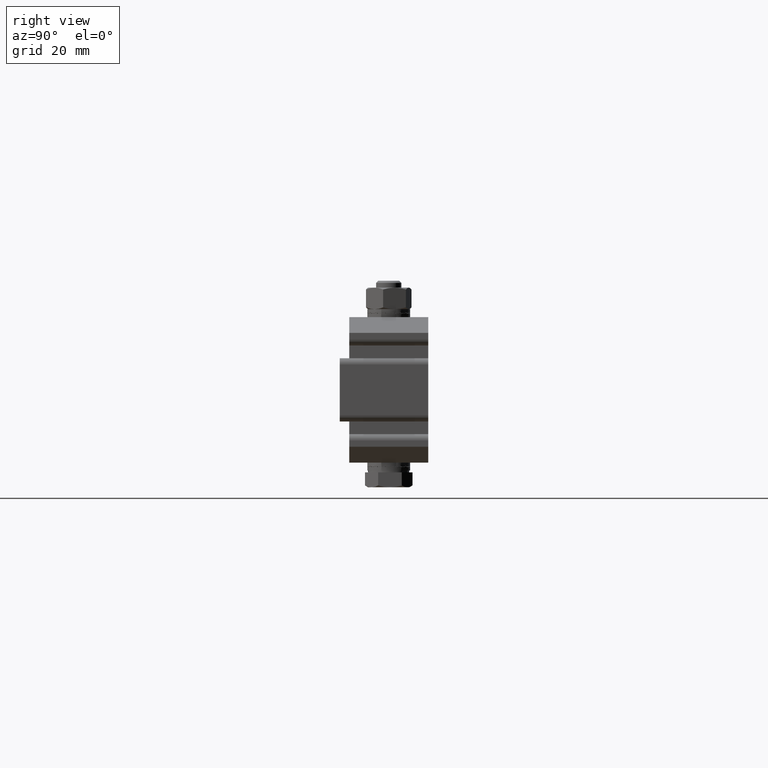
[diagram: clean part render]
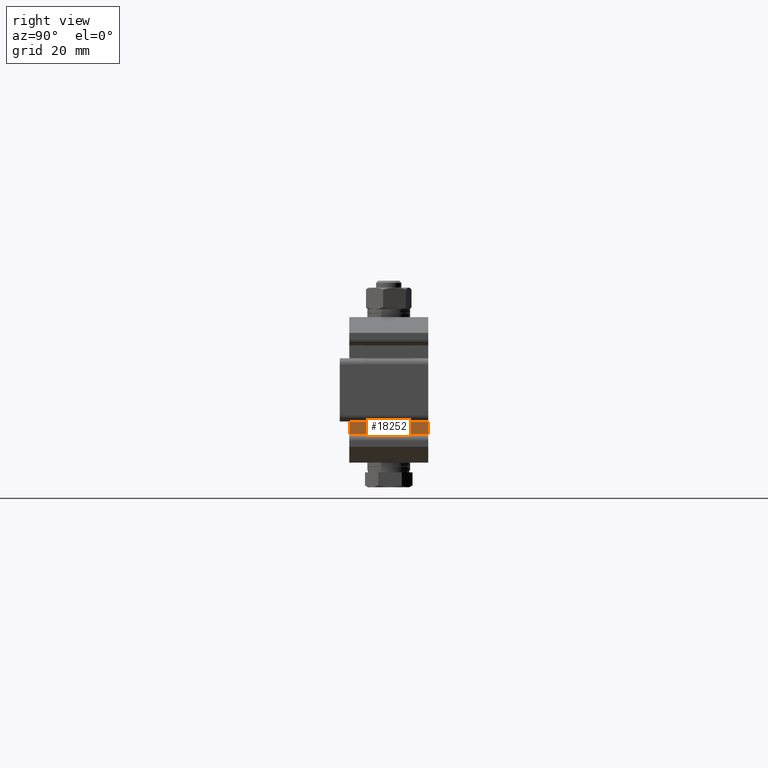
[diagram: same view with one face highlighted and labeled with its STEP entity id]
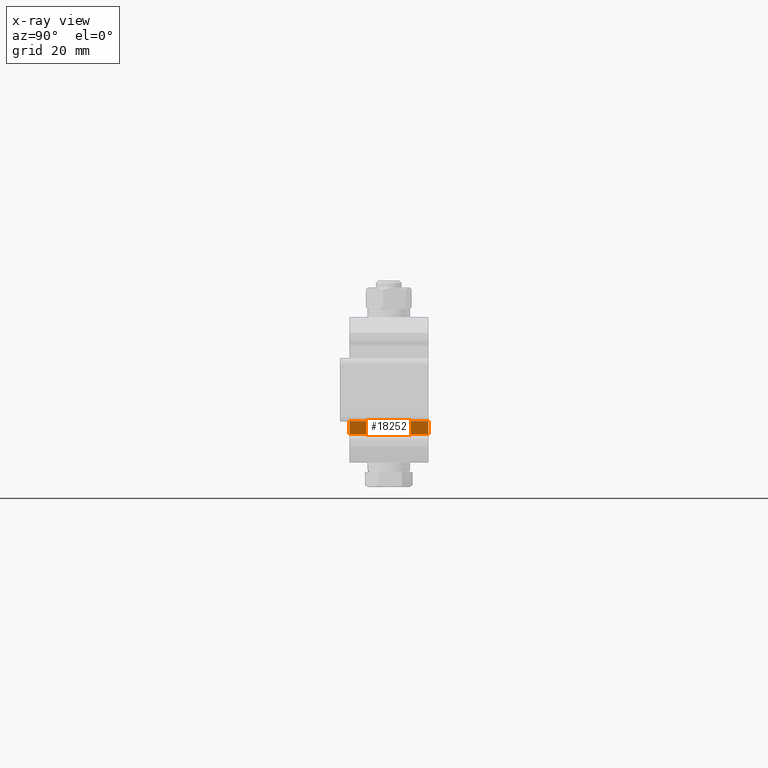
[diagram: x-ray of the same camera — body ghosted, the highlighted face saturated]
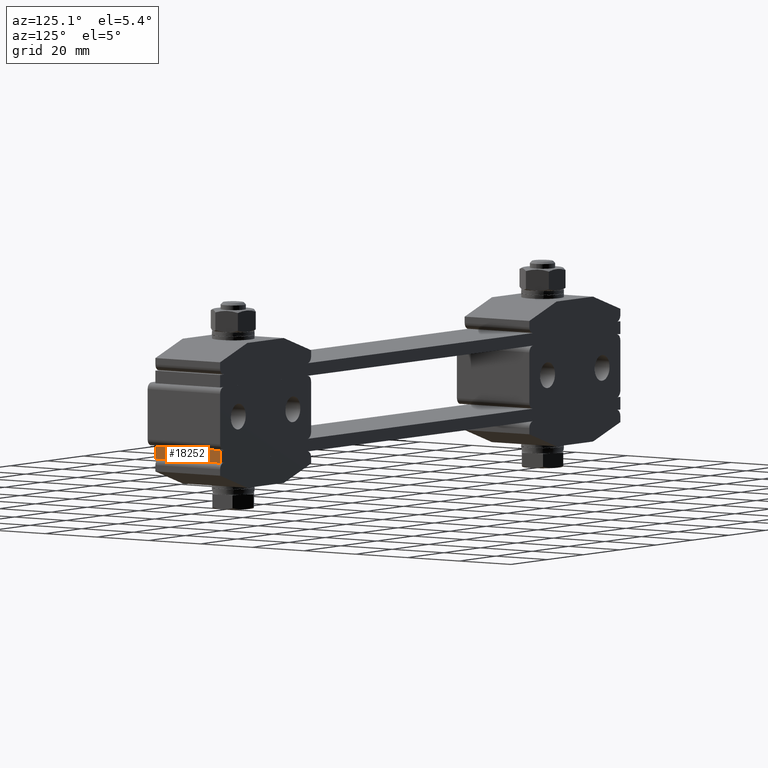
[diagram: same view with one face highlighted and labeled with its STEP entity id]
A machine part, right view. The second image highlights one B-rep face of the part: STEP entity #18252.
The next image is the same camera in x-ray: the body ghosted, the highlighted face saturated — about 0% of this face is hidden behind the body in this view.
A second angle (auxiliary view) of the same face is appended — the face is thin or edge-on in the first view.
In plain terms, the highlighted planar face has unit normal (-1, 0, 0).
Its self-contained STEP definition (entity closure, byte-faithful):
#1218 = ORIENTED_EDGE ( 'NONE', *, *, #3651, .T. ) ;
#1604 = VERTEX_POINT ( 'NONE', #6914 ) ;
#1771 = DIRECTION ( 'NONE',  ( 0.0000000000000000000, 0.0000000000000000000, 1.000000000000000000 ) ) ;
#1888 = CARTESIAN_POINT ( 'NONE',  ( 110.0000000000000000, -12.50000000000000000, 4.000000000000000000 ) ) ;
#3066 = LINE ( 'NONE', #8215, #20305 ) ;
#3495 = DIRECTION ( 'NONE',  ( -1.000000000000000000, 0.0000000000000000000, 0.0000000000000000000 ) ) ;
#3651 = EDGE_CURVE ( 'NONE', #5868, #1604, #3066, .T. ) ;
#4176 = EDGE_CURVE ( 'NONE', #8098, #5868, #8974, .T. ) ;
#4486 = LINE ( 'NONE', #18665, #17566 ) ;
#4882 = VERTEX_POINT ( 'NONE', #20204 ) ;
#5707 = CARTESIAN_POINT ( 'NONE',  ( 110.0000000000000000, -12.50000000000000000, 4.000000000000000000 ) ) ;
#5868 = VERTEX_POINT ( 'NONE', #9705 ) ;
#6914 = CARTESIAN_POINT ( 'NONE',  ( 110.0000000000000000, 12.50000000000000000, 0.0000000000000000000 ) ) ;
#7247 = EDGE_LOOP ( 'NONE', ( #1218, #12402, #13088, #10760 ) ) ;
#7430 = VECTOR ( 'NONE', #16603, 1000.000000000000000 ) ;
#7779 = EDGE_CURVE ( 'NONE', #8098, #4882, #8549, .T. ) ;
#8098 = VERTEX_POINT ( 'NONE', #5707 ) ;
#8215 = CARTESIAN_POINT ( 'NONE',  ( 110.0000000000000000, 12.50000000000000000, 0.0000000000000000000 ) ) ;
#8549 = LINE ( 'NONE', #14135, #13979 ) ;
#8974 = LINE ( 'NONE', #1888, #7430 ) ;
#9705 = CARTESIAN_POINT ( 'NONE',  ( 110.0000000000000000, -12.50000000000000000, 0.0000000000000000000 ) ) ;
#10389 = AXIS2_PLACEMENT_3D ( 'NONE', #18262, #3495, #1771 ) ;
#10760 = ORIENTED_EDGE ( 'NONE', *, *, #4176, .T. ) ;
#12402 = ORIENTED_EDGE ( 'NONE', *, *, #13050, .F. ) ;
#13050 = EDGE_CURVE ( 'NONE', #4882, #1604, #4486, .T. ) ;
#13088 = ORIENTED_EDGE ( 'NONE', *, *, #7779, .F. ) ;
#13979 = VECTOR ( 'NONE', #14194, 1000.000000000000000 ) ;
#14135 = CARTESIAN_POINT ( 'NONE',  ( 110.0000000000000000, 12.50000000000000000, 4.000000000000000000 ) ) ;
#14194 = DIRECTION ( 'NONE',  ( 0.0000000000000000000, 1.000000000000000000, 0.0000000000000000000 ) ) ;
#16603 = DIRECTION ( 'NONE',  ( 0.0000000000000000000, 0.0000000000000000000, -1.000000000000000000 ) ) ;
#17566 = VECTOR ( 'NONE', #20330, 1000.000000000000000 ) ;
#18252 = ADVANCED_FACE ( 'NONE', ( #21186 ), #19692, .F. ) ;
#18262 = CARTESIAN_POINT ( 'NONE',  ( 110.0000000000000000, 12.50000000000000000, 4.000000000000000000 ) ) ;
#18665 = CARTESIAN_POINT ( 'NONE',  ( 110.0000000000000000, 12.50000000000000000, 4.000000000000000000 ) ) ;
#19692 = PLANE ( 'NONE',  #10389 ) ;
#19749 = DIRECTION ( 'NONE',  ( 0.0000000000000000000, 1.000000000000000000, 0.0000000000000000000 ) ) ;
#20204 = CARTESIAN_POINT ( 'NONE',  ( 110.0000000000000000, 12.50000000000000000, 4.000000000000000000 ) ) ;
#20305 = VECTOR ( 'NONE', #19749, 1000.000000000000000 ) ;
#20330 = DIRECTION ( 'NONE',  ( 0.0000000000000000000, 0.0000000000000000000, -1.000000000000000000 ) ) ;
#21186 = FACE_OUTER_BOUND ( 'NONE', #7247, .T. ) ;